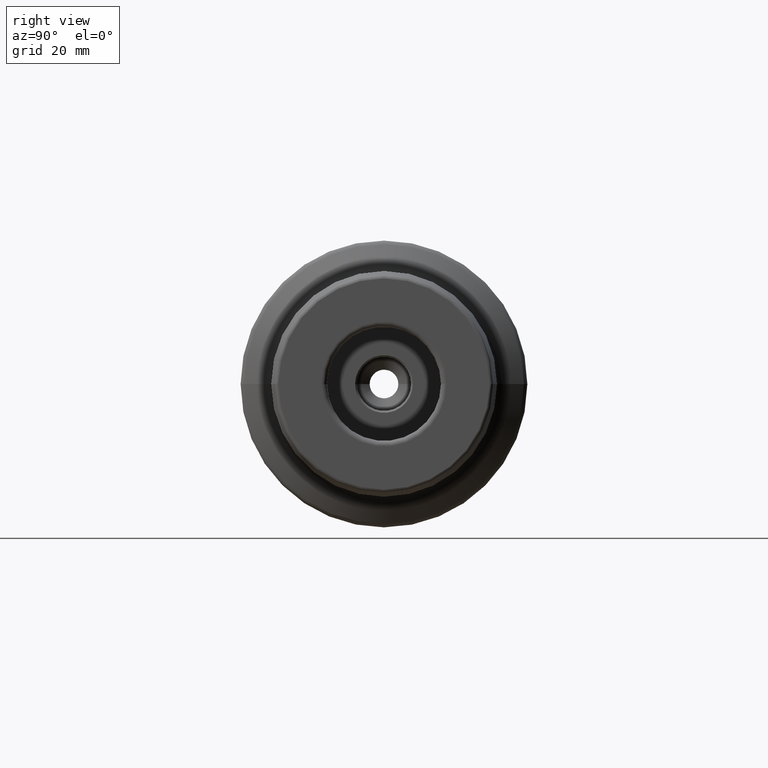
[diagram: clean part render]
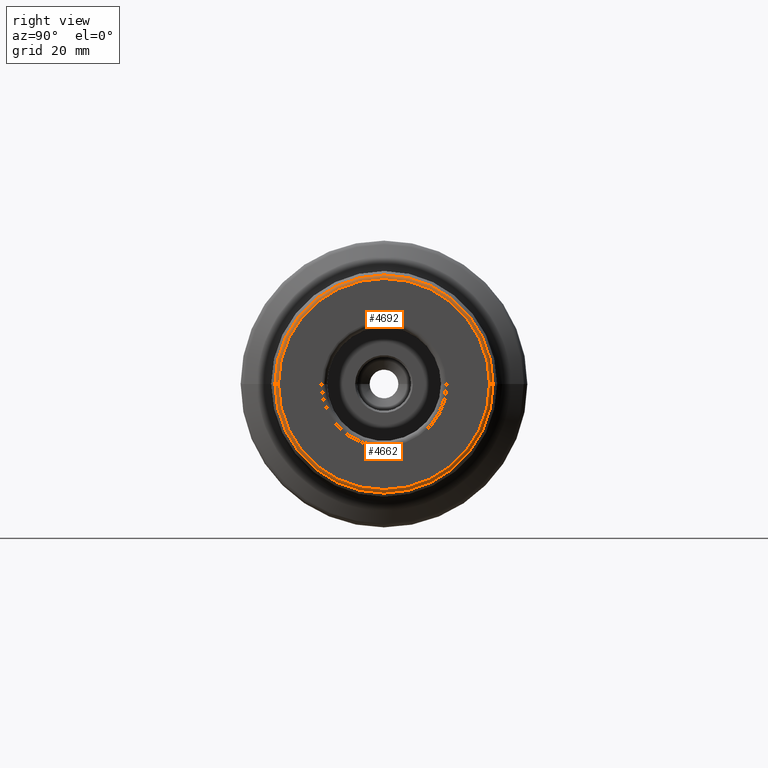
[diagram: same view with one multi-face feature highlighted, each face labeled with its STEP entity id]
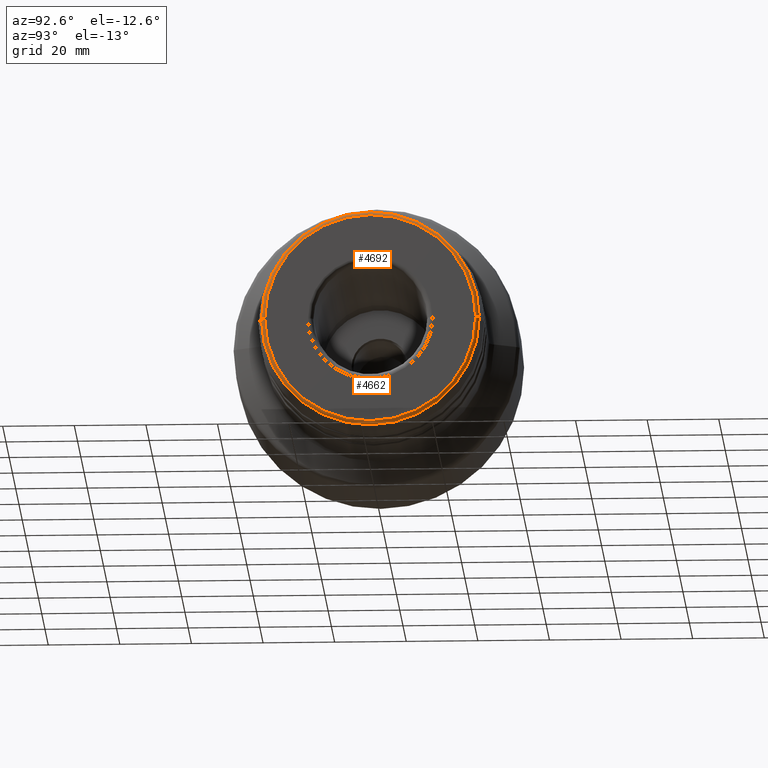
[diagram: same view with one multi-face feature highlighted, each face labeled with its STEP entity id]
A machine part, right view. The highlighted faces form ONE feature: a constant-radius fillet chain: 2 tangent blend faces with common blend radius 0.9906 mm. The faces share edges in the B-rep.
A second angle (auxiliary view) of the same feature is appended — it is thin or edge-on in the first view.
Their STEP definitions:
[1] entity #4692 (Torus):
#1735=CARTESIAN_POINT('',(3.961E0,-1.160019483554E0,-1.562860134016E-8));
#1736=DIRECTION('',(0.E0,1.347270590230E-8,-1.E0));
#1737=DIRECTION('',(1.E0,0.E0,0.E0));
#1738=AXIS2_PLACEMENT_3D('',#1735,#1736,#1737);
#1745=CARTESIAN_POINT('',(4.E0,0.E0,0.E0));
#1746=DIRECTION('',(1.E0,0.E0,0.E0));
#1747=DIRECTION('',(0.E0,1.E0,1.347270533462E-8));
#1748=AXIS2_PLACEMENT_3D('',#1745,#1746,#1747);
#1760=CARTESIAN_POINT('',(3.961E0,1.160019483554E0,1.562860019524E-8));
#1761=DIRECTION('',(0.E0,-1.347270491350E-8,1.E0));
#1762=DIRECTION('',(1.E0,0.E0,0.E0));
#1763=AXIS2_PLACEMENT_3D('',#1760,#1761,#1762);
#1765=CARTESIAN_POINT('',(3.967772278929E0,0.E0,0.E0));
#1766=DIRECTION('',(1.E0,0.E0,0.E0));
#1767=DIRECTION('',(0.E0,1.E0,-3.983247448996E-10));
#1768=AXIS2_PLACEMENT_3D('',#1765,#1766,#1767);
#2543=CARTESIAN_POINT('',(4.E0,-1.160019483554E0,-1.562860082640E-8));
#2544=CARTESIAN_POINT('',(4.E0,1.160019483554E0,1.562860068434E-8));
#2545=VERTEX_POINT('',#2543);
#2546=VERTEX_POINT('',#2544);
#2547=CARTESIAN_POINT('',(3.967772278929E0,-1.198426985922E0,
4.773630041088E-10));
#2548=CARTESIAN_POINT('',(3.967772278929E0,1.198426985922E0,
-4.773631508737E-10));
#2549=VERTEX_POINT('',#2547);
#2550=VERTEX_POINT('',#2548);
#4680=CARTESIAN_POINT('',(3.961E0,0.E0,0.E0));
#4681=DIRECTION('',(-1.E0,0.E0,0.E0));
#4682=DIRECTION('',(0.E0,9.998958316566E-1,-1.443349700106E-2));
#4683=AXIS2_PLACEMENT_3D('',#4680,#4681,#4682);
#4684=TOROIDAL_SURFACE('',#4683,1.160019483554E0,3.9E-2);
#4685=ORIENTED_EDGE('',*,*,#4669,.T.);
#4686=ORIENTED_EDGE('',*,*,#4658,.T.);
#4688=ORIENTED_EDGE('',*,*,#4687,.F.);
#4689=ORIENTED_EDGE('',*,*,#4655,.F.);
#4690=EDGE_LOOP('',(#4685,#4686,#4688,#4689));
#4691=FACE_OUTER_BOUND('',#4690,.F.);
#4692=ADVANCED_FACE('',(#4691),#4684,.T.);
#1739=CIRCLE('',#1738,3.9E-2);
#1749=CIRCLE('',#1748,1.160019483554E0);
#1764=CIRCLE('',#1763,3.9E-2);
#1769=CIRCLE('',#1768,1.198426985922E0);
#4655=EDGE_CURVE('',#2546,#2550,#1764,.T.);
#4658=EDGE_CURVE('',#2545,#2549,#1739,.T.);
#4669=EDGE_CURVE('',#2546,#2545,#1749,.T.);
#4687=EDGE_CURVE('',#2550,#2549,#1769,.T.);
[2] entity #4662 (Torus):
#1721=CARTESIAN_POINT('',(3.967772278929E0,0.E0,0.E0));
#1722=DIRECTION('',(1.E0,0.E0,0.E0));
#1723=DIRECTION('',(0.E0,-1.E0,3.983246453196E-10));
#1724=AXIS2_PLACEMENT_3D('',#1721,#1722,#1723);
#1735=CARTESIAN_POINT('',(3.961E0,-1.160019483554E0,-1.562860134016E-8));
#1736=DIRECTION('',(0.E0,1.347270590230E-8,-1.E0));
#1737=DIRECTION('',(1.E0,0.E0,0.E0));
#1738=AXIS2_PLACEMENT_3D('',#1735,#1736,#1737);
#1740=CARTESIAN_POINT('',(4.E0,0.E0,0.E0));
#1741=DIRECTION('',(1.E0,0.E0,0.E0));
#1742=DIRECTION('',(0.E0,-1.E0,-1.347270545708E-8));
#1743=AXIS2_PLACEMENT_3D('',#1740,#1741,#1742);
#1760=CARTESIAN_POINT('',(3.961E0,1.160019483554E0,1.562860019524E-8));
#1761=DIRECTION('',(0.E0,-1.347270491350E-8,1.E0));
#1762=DIRECTION('',(1.E0,0.E0,0.E0));
#1763=AXIS2_PLACEMENT_3D('',#1760,#1761,#1762);
#2543=CARTESIAN_POINT('',(4.E0,-1.160019483554E0,-1.562860082640E-8));
#2544=CARTESIAN_POINT('',(4.E0,1.160019483554E0,1.562860068434E-8));
#2545=VERTEX_POINT('',#2543);
#2546=VERTEX_POINT('',#2544);
#2547=CARTESIAN_POINT('',(3.967772278929E0,-1.198426985922E0,
4.773630041088E-10));
#2548=CARTESIAN_POINT('',(3.967772278929E0,1.198426985922E0,
-4.773631508737E-10));
#2549=VERTEX_POINT('',#2547);
#2550=VERTEX_POINT('',#2548);
#4648=CARTESIAN_POINT('',(3.961E0,0.E0,0.E0));
#4649=DIRECTION('',(-1.E0,0.E0,0.E0));
#4650=DIRECTION('',(0.E0,-9.998958316566E-1,1.443349700106E-2));
#4651=AXIS2_PLACEMENT_3D('',#4648,#4649,#4650);
#4652=TOROIDAL_SURFACE('',#4651,1.160019483554E0,3.9E-2);
#4654=ORIENTED_EDGE('',*,*,#4653,.T.);
#4656=ORIENTED_EDGE('',*,*,#4655,.T.);
#4657=ORIENTED_EDGE('',*,*,#4638,.F.);
#4659=ORIENTED_EDGE('',*,*,#4658,.F.);
#4660=EDGE_LOOP('',(#4654,#4656,#4657,#4659));
#4661=FACE_OUTER_BOUND('',#4660,.F.);
#4662=ADVANCED_FACE('',(#4661),#4652,.T.);
#1725=CIRCLE('',#1724,1.198426985922E0);
#1739=CIRCLE('',#1738,3.9E-2);
#1744=CIRCLE('',#1743,1.160019483554E0);
#1764=CIRCLE('',#1763,3.9E-2);
#4638=EDGE_CURVE('',#2549,#2550,#1725,.T.);
#4653=EDGE_CURVE('',#2545,#2546,#1744,.T.);
#4655=EDGE_CURVE('',#2546,#2550,#1764,.T.);
#4658=EDGE_CURVE('',#2545,#2549,#1739,.T.);